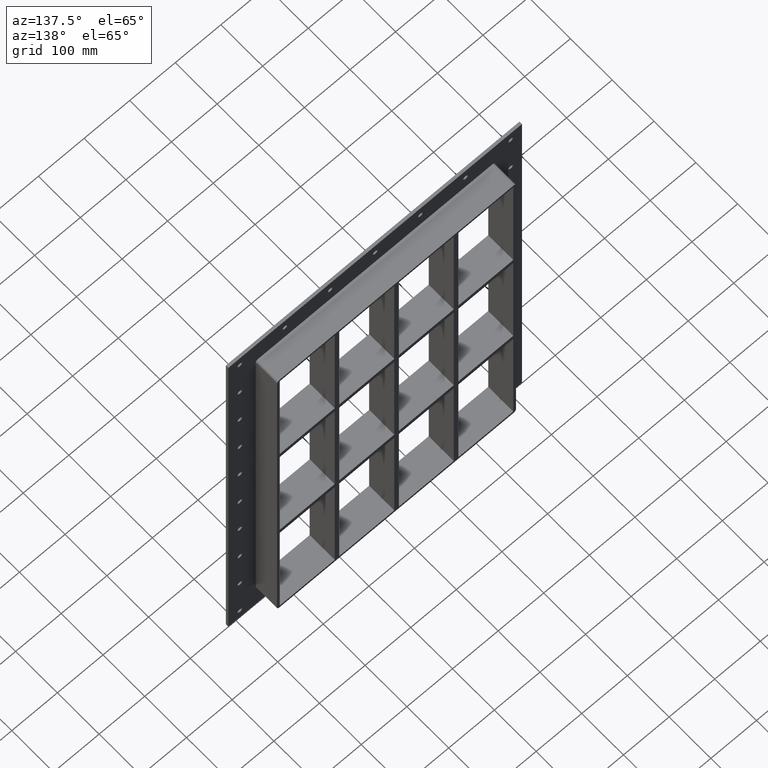
[diagram: clean part render]
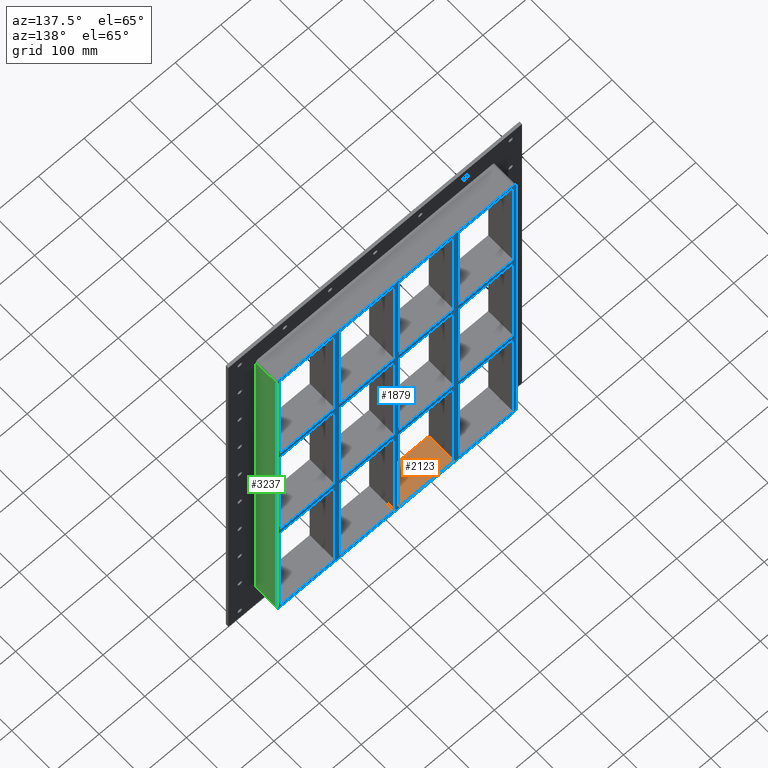
[diagram: same view with three faces highlighted in distinct colors, each labeled with its STEP entity id]
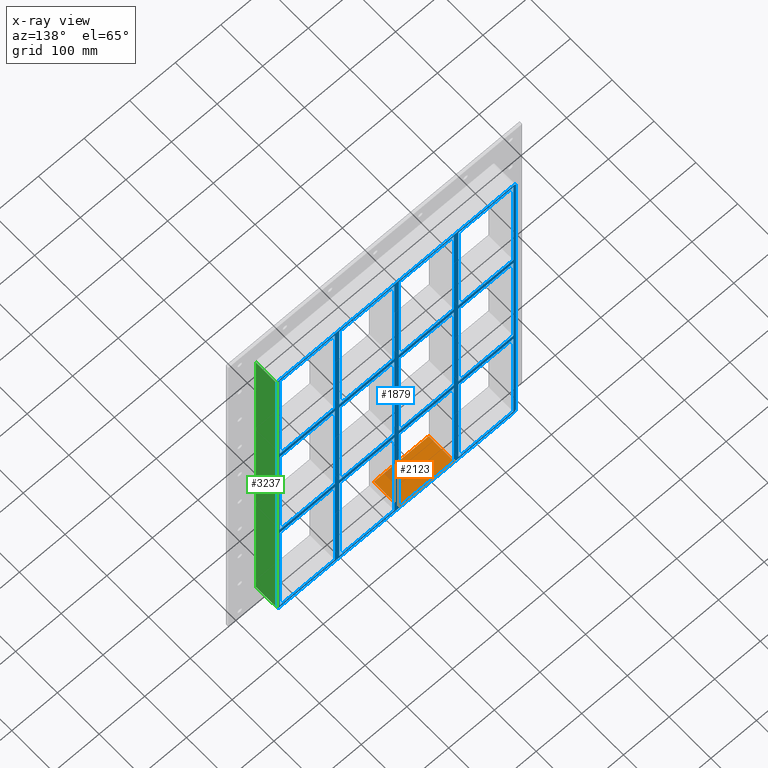
[diagram: x-ray of the same camera — body ghosted, the three highlighted faces saturated]
A machine part, auxiliary view with three faces highlighted in distinct colors.
The next image is the same camera in x-ray (body ghosted, the three faces saturated) — at least one of them is partly hidden behind the body in this view.
Their STEP definitions:

[orange] entity #2123 — the highlighted planar face has unit normal (0, 0, -1).
#1766=CARTESIAN_POINT('',(-5.000000000001279,57.0,-429.00000000000006));
#1767=VERTEX_POINT('',#1766);
#1784=CARTESIAN_POINT('',(-125.49999999999272,57.0,-428.99999999998431));
#1785=VERTEX_POINT('',#1784);
#1792=CARTESIAN_POINT('',(-125.49999999999272,57.0,-429.00000000000006));
#1793=DIRECTION('',(1.0,0.0,0.0));
#1794=VECTOR('',#1793,120.49999999999145);
#1795=LINE('',#1792,#1794);
#1796=EDGE_CURVE('',#1785,#1767,#1795,.T.);
#2028=CARTESIAN_POINT('',(-5.000000000001279,-3.0,-429.00000000000006));
#2029=VERTEX_POINT('',#2028);
#2030=CARTESIAN_POINT('',(-5.000000000001279,-3.0,-429.00000000000006));
#2031=DIRECTION('',(0.0,1.0,0.0));
#2032=VECTOR('',#2031,60.000000000000007);
#2033=LINE('',#2030,#2032);
#2034=EDGE_CURVE('',#2029,#1767,#2033,.T.);
#2100=CARTESIAN_POINT('',(256.00000000000006,0.0,-429.00000000000006));
#2101=DIRECTION('',(0.0,0.0,-1.0));
#2102=DIRECTION('',(-1.0,0.0,0.0));
#2103=AXIS2_PLACEMENT_3D('',#2100,#2101,#2102);
#2104=PLANE('',#2103);
#2105=ORIENTED_EDGE('',*,*,#2034,.T.);
#2106=ORIENTED_EDGE('',*,*,#1796,.F.);
#2107=CARTESIAN_POINT('',(-125.49999999999272,-3.0,-428.99999999998431));
#2108=VERTEX_POINT('',#2107);
#2109=CARTESIAN_POINT('',(-125.49999999999274,57.000000000000007,-429.00000000000006));
#2110=DIRECTION('',(0.0,-1.0,0.0));
#2111=VECTOR('',#2110,60.000000000000007);
#2112=LINE('',#2109,#2111);
#2113=EDGE_CURVE('',#1785,#2108,#2112,.T.);
#2114=ORIENTED_EDGE('',*,*,#2113,.T.);
#2115=CARTESIAN_POINT('',(-5.000000000001279,-3.0,-429.00000000000006));
#2116=DIRECTION('',(-1.0,0.0,0.0));
#2117=VECTOR('',#2116,120.49999999999145);
#2118=LINE('',#2115,#2117);
#2119=EDGE_CURVE('',#2029,#2108,#2118,.T.);
#2120=ORIENTED_EDGE('',*,*,#2119,.F.);
#2121=EDGE_LOOP('',(#2105,#2106,#2114,#2120));
#2122=FACE_OUTER_BOUND('',#2121,.T.);
#2123=ADVANCED_FACE('',(#2122),#2104,.F.);

[blue] entity #1879 — the highlighted planar face has unit normal (0, 1, 0).
#915=CARTESIAN_POINT('',(-135.50000000000142,57.0,138.99999999999068));
#916=VERTEX_POINT('',#915);
#931=CARTESIAN_POINT('',(-255.99999999999972,57.0,138.99999999999068));
#932=VERTEX_POINT('',#931);
#939=CARTESIAN_POINT('',(-135.50000000000136,57.0,138.99999999999068));
#940=DIRECTION('',(-1.0,0.0,0.0));
#941=VECTOR('',#940,120.49999999999841);
#942=LINE('',#939,#941);
#943=EDGE_CURVE('',#916,#932,#942,.T.);
#955=CARTESIAN_POINT('',(-5.000000000001386,57.0,138.99999999999071));
#956=VERTEX_POINT('',#955);
#971=CARTESIAN_POINT('',(-125.49999999999272,57.0,138.99999999999068));
#972=VERTEX_POINT('',#971);
#979=CARTESIAN_POINT('',(-5.000000000001364,57.0,138.99999999999068));
#980=DIRECTION('',(-1.0,0.0,0.0));
#981=VECTOR('',#980,120.49999999999136);
#982=LINE('',#979,#981);
#983=EDGE_CURVE('',#956,#972,#982,.T.);
#993=CARTESIAN_POINT('',(135.50000000000728,57.0,138.99999999999071));
#994=VERTEX_POINT('',#993);
#1003=CARTESIAN_POINT('',(256.00000000000364,57.0,138.99999999999071));
#1004=VERTEX_POINT('',#1003);
#1005=CARTESIAN_POINT('',(256.00000000000364,57.0,138.99999999999071));
#1006=DIRECTION('',(-1.0,0.0,0.0));
#1007=VECTOR('',#1006,120.49999999999636);
#1008=LINE('',#1005,#1007);
#1009=EDGE_CURVE('',#1004,#994,#1008,.T.);
#1035=CARTESIAN_POINT('',(125.49999999999861,57.0,138.99999999999071));
#1036=VERTEX_POINT('',#1035);
#1051=CARTESIAN_POINT('',(5.000000000007283,57.0,138.99999999999071));
#1052=VERTEX_POINT('',#1051);
#1059=CARTESIAN_POINT('',(125.49999999999861,57.0,138.99999999999071));
#1060=DIRECTION('',(-1.0,0.0,0.0));
#1061=VECTOR('',#1060,120.49999999999133);
#1062=LINE('',#1059,#1061);
#1063=EDGE_CURVE('',#1036,#1052,#1062,.T.);
#1073=CARTESIAN_POINT('',(-135.50000000000142,57.0,150.99999999999994));
#1074=VERTEX_POINT('',#1073);
#1083=CARTESIAN_POINT('',(-255.99999999999972,57.0,150.99999999999994));
#1084=VERTEX_POINT('',#1083);
#1085=CARTESIAN_POINT('',(-255.99999999999972,57.0,150.99999999999994));
#1086=DIRECTION('',(1.0,0.0,0.0));
#1087=VECTOR('',#1086,120.49999999999832);
#1088=LINE('',#1085,#1087);
#1089=EDGE_CURVE('',#1084,#1074,#1088,.T.);
#1115=CARTESIAN_POINT('',(135.50000000000728,57.0,150.99999999999994));
#1116=VERTEX_POINT('',#1115);
#1131=CARTESIAN_POINT('',(256.0,57.0,150.99999999999994));
#1132=VERTEX_POINT('',#1131);
#1139=CARTESIAN_POINT('',(135.50000000000733,57.0,150.99999999999994));
#1140=DIRECTION('',(1.0,0.0,0.0));
#1141=VECTOR('',#1140,120.49999999999272);
#1142=LINE('',#1139,#1141);
#1143=EDGE_CURVE('',#1116,#1132,#1142,.T.);
#1153=CARTESIAN_POINT('',(-5.000000000001386,57.0,150.99999999999994));
#1154=VERTEX_POINT('',#1153);
#1163=CARTESIAN_POINT('',(-125.49999999999272,57.0,150.99999999999994));
#1164=VERTEX_POINT('',#1163);
#1165=CARTESIAN_POINT('',(-125.49999999999272,57.0,150.99999999999994));
#1166=DIRECTION('',(1.0,0.0,0.0));
#1167=VECTOR('',#1166,120.49999999999136);
#1168=LINE('',#1165,#1167);
#1169=EDGE_CURVE('',#1164,#1154,#1168,.T.);
#1193=CARTESIAN_POINT('',(125.49999999999862,57.0,150.99999999999994));
#1194=VERTEX_POINT('',#1193);
#1203=CARTESIAN_POINT('',(5.000000000007283,57.0,150.99999999999994));
#1204=VERTEX_POINT('',#1203);
#1205=CARTESIAN_POINT('',(5.000000000007276,57.0,150.99999999999994));
#1206=DIRECTION('',(1.0,0.0,0.0));
#1207=VECTOR('',#1206,120.49999999999136);
#1208=LINE('',#1205,#1207);
#1209=EDGE_CURVE('',#1204,#1194,#1208,.T.);
#1234=CARTESIAN_POINT('',(-256.00000000000006,57.0,429.00000000000006));
#1235=VERTEX_POINT('',#1234);
#1236=CARTESIAN_POINT('',(-256.00000000000006,57.0,429.00000000000006));
#1237=DIRECTION('',(0.0,0.0,-1.0));
#1238=VECTOR('',#1237,278.00000000000011);
#1239=LINE('',#1236,#1238);
#1240=EDGE_CURVE('',#1235,#1084,#1239,.T.);
#1265=CARTESIAN_POINT('',(256.0,57.0,-139.00000000000006));
#1266=VERTEX_POINT('',#1265);
#1267=CARTESIAN_POINT('',(256.00000000000006,57.0,-139.00000000000011));
#1268=DIRECTION('',(0.0,0.0,1.0));
#1269=VECTOR('',#1268,277.99999999999085);
#1270=LINE('',#1267,#1269);
#1271=EDGE_CURVE('',#1266,#1004,#1270,.T.);
#1304=CARTESIAN_POINT('',(256.00000000000006,57.0,429.00000000000006));
#1305=VERTEX_POINT('',#1304);
#1312=CARTESIAN_POINT('',(256.00000000000006,57.0,150.99999999999994));
#1313=DIRECTION('',(0.0,0.0,1.0));
#1314=VECTOR('',#1313,278.00000000000011);
#1315=LINE('',#1312,#1314);
#1316=EDGE_CURVE('',#1132,#1305,#1315,.T.);
#1335=CARTESIAN_POINT('',(125.49999999999855,57.0,429.00000000000006));
#1336=VERTEX_POINT('',#1335);
#1343=CARTESIAN_POINT('',(125.49999999999861,57.0,150.99999999999994));
#1344=DIRECTION('',(0.0,0.0,1.0));
#1345=VECTOR('',#1344,278.00000000000011);
#1346=LINE('',#1343,#1345);
#1347=EDGE_CURVE('',#1194,#1336,#1346,.T.);
#1358=CARTESIAN_POINT('',(135.50000000000728,57.0,429.00000000000006));
#1359=VERTEX_POINT('',#1358);
#1360=CARTESIAN_POINT('',(135.50000000000728,57.0,429.00000000000006));
#1361=DIRECTION('',(0.0,0.0,-1.0));
#1362=VECTOR('',#1361,278.00000000000011);
#1363=LINE('',#1360,#1362);
#1364=EDGE_CURVE('',#1359,#1116,#1363,.T.);
#1397=CARTESIAN_POINT('',(-5.000000000001457,57.0,429.00000000000006));
#1398=VERTEX_POINT('',#1397);
#1405=CARTESIAN_POINT('',(-5.000000000001399,57.0,150.99999999999994));
#1406=DIRECTION('',(0.0,0.0,1.0));
#1407=VECTOR('',#1406,278.00000000000011);
#1408=LINE('',#1405,#1407);
#1409=EDGE_CURVE('',#1154,#1398,#1408,.T.);
#1420=CARTESIAN_POINT('',(5.000000000007283,57.0,429.00000000000006));
#1421=VERTEX_POINT('',#1420);
#1422=CARTESIAN_POINT('',(5.000000000007283,57.0,429.00000000000006));
#1423=DIRECTION('',(0.0,0.0,-1.0));
#1424=VECTOR('',#1423,278.00000000000011);
#1425=LINE('',#1422,#1424);
#1426=EDGE_CURVE('',#1421,#1204,#1425,.T.);
#1459=CARTESIAN_POINT('',(-135.50000000000148,57.0,429.00000000000006));
#1460=VERTEX_POINT('',#1459);
#1467=CARTESIAN_POINT('',(-135.50000000000139,57.0,150.99999999999994));
#1468=DIRECTION('',(0.0,0.0,1.0));
#1469=VECTOR('',#1468,278.00000000000011);
#1470=LINE('',#1467,#1469);
#1471=EDGE_CURVE('',#1074,#1460,#1470,.T.);
#1482=CARTESIAN_POINT('',(-135.50000000000134,57.0,-139.00000000000006));
#1483=VERTEX_POINT('',#1482);
#1484=CARTESIAN_POINT('',(-135.50000000000134,57.0,-139.00000000000006));
#1485=DIRECTION('',(0.0,0.0,1.0));
#1486=VECTOR('',#1485,277.99999999999068);
#1487=LINE('',#1484,#1486);
#1488=EDGE_CURVE('',#1483,#916,#1487,.T.);
#1513=CARTESIAN_POINT('',(-125.49999999999272,57.0,429.00000000000006));
#1514=VERTEX_POINT('',#1513);
#1515=CARTESIAN_POINT('',(-125.49999999999272,57.0,429.00000000000006));
#1516=DIRECTION('',(0.0,0.0,-1.0));
#1517=VECTOR('',#1516,278.00000000000011);
#1518=LINE('',#1515,#1517);
#1519=EDGE_CURVE('',#1514,#1164,#1518,.T.);
#1538=CARTESIAN_POINT('',(-2.446632E-014,57.0,-7.339896E-014));
#1539=DIRECTION('',(0.0,1.0,0.0));
#1540=DIRECTION('',(0.0,0.0,1.0));
#1541=AXIS2_PLACEMENT_3D('',#1538,#1539,#1540);
#1542=PLANE('',#1541);
#1543=CARTESIAN_POINT('',(256.0,57.0,-435.00000000000011));
#1544=VERTEX_POINT('',#1543);
#1545=CARTESIAN_POINT('',(262.0,57.0,-429.00000000000006));
#1546=VERTEX_POINT('',#1545);
#1547=CARTESIAN_POINT('',(256.0,57.0,-429.00000000000006));
#1548=DIRECTION('',(0.0,-1.0,0.0));
#1549=DIRECTION('',(0.707106781186543,0.0,-0.707106781186552));
#1550=AXIS2_PLACEMENT_3D('',#1547,#1548,#1549);
#1551=CIRCLE('',#1550,6.0);
#1552=EDGE_CURVE('',#1544,#1546,#1551,.T.);
#1553=ORIENTED_EDGE('',*,*,#1552,.F.);
#1554=CARTESIAN_POINT('',(-256.00000000000006,57.0,-435.00000000000011));
#1555=VERTEX_POINT('',#1554);
#1556=CARTESIAN_POINT('',(256.0,57.0,-435.00000000000011));
#1557=DIRECTION('',(-1.0,0.0,0.0));
#1558=VECTOR('',#1557,512.0);
#1559=LINE('',#1556,#1558);
#1560=EDGE_CURVE('',#1544,#1555,#1559,.T.);
#1561=ORIENTED_EDGE('',*,*,#1560,.T.);
#1562=CARTESIAN_POINT('',(-262.00000000000006,57.0,-429.00000000000023));
#1563=VERTEX_POINT('',#1562);
#1564=CARTESIAN_POINT('',(-256.00000000000006,57.0,-429.00000000000023));
#1565=DIRECTION('',(0.0,-1.0,0.0));
#1566=DIRECTION('',(-0.707106781186552,0.0,-0.707106781186543));
#1567=AXIS2_PLACEMENT_3D('',#1564,#1565,#1566);
#1568=CIRCLE('',#1567,6.000000000000001);
#1569=EDGE_CURVE('',#1563,#1555,#1568,.T.);
#1570=ORIENTED_EDGE('',*,*,#1569,.F.);
#1571=CARTESIAN_POINT('',(-262.00000000000006,57.0,428.99999999999989));
#1572=VERTEX_POINT('',#1571);
#1573=CARTESIAN_POINT('',(-262.00000000000006,57.0,-429.00000000000017));
#1574=DIRECTION('',(0.0,0.0,1.0));
#1575=VECTOR('',#1574,858.0);
#1576=LINE('',#1573,#1575);
#1577=EDGE_CURVE('',#1563,#1572,#1576,.T.);
#1578=ORIENTED_EDGE('',*,*,#1577,.T.);
#1579=CARTESIAN_POINT('',(-256.00000000000011,57.0,435.0));
#1580=VERTEX_POINT('',#1579);
#1581=CARTESIAN_POINT('',(-256.00000000000011,57.0,428.99999999999989));
#1582=DIRECTION('',(0.0,-1.0,0.0));
#1583=DIRECTION('',(-0.707106781186539,0.0,0.707106781186556));
#1584=AXIS2_PLACEMENT_3D('',#1581,#1582,#1583);
#1585=CIRCLE('',#1584,6.000000000000001);
#1586=EDGE_CURVE('',#1580,#1572,#1585,.T.);
#1587=ORIENTED_EDGE('',*,*,#1586,.F.);
#1588=CARTESIAN_POINT('',(256.0,57.0,435.0));
#1589=VERTEX_POINT('',#1588);
#1590=CARTESIAN_POINT('',(-256.00000000000006,57.0,435.0));
#1591=DIRECTION('',(1.0,0.0,0.0));
#1592=VECTOR('',#1591,512.0);
#1593=LINE('',#1590,#1592);
#1594=EDGE_CURVE('',#1580,#1589,#1593,.T.);
#1595=ORIENTED_EDGE('',*,*,#1594,.T.);
#1596=CARTESIAN_POINT('',(262.0,57.0,429.0));
#1597=VERTEX_POINT('',#1596);
#1598=CARTESIAN_POINT('',(256.0,57.0,429.0));
#1599=DIRECTION('',(0.0,-1.0,0.0));
#1600=DIRECTION('',(0.707106781186543,0.0,0.707106781186552));
#1601=AXIS2_PLACEMENT_3D('',#1598,#1599,#1600);
#1602=CIRCLE('',#1601,6.0);
#1603=EDGE_CURVE('',#1597,#1589,#1602,.T.);
#1604=ORIENTED_EDGE('',*,*,#1603,.F.);
#1605=CARTESIAN_POINT('',(262.0,57.0,429.0));
#1606=DIRECTION('',(0.0,0.0,-1.0));
#1607=VECTOR('',#1606,858.0);
#1608=LINE('',#1605,#1607);
#1609=EDGE_CURVE('',#1597,#1546,#1608,.T.);
#1610=ORIENTED_EDGE('',*,*,#1609,.T.);
#1611=EDGE_LOOP('',(#1553,#1561,#1570,#1578,#1587,#1595,#1604,#1610));
#1612=FACE_OUTER_BOUND('',#1611,.T.);
#1613=CARTESIAN_POINT('',(-255.99999999999972,57.0,-139.00000000000006));
#1614=VERTEX_POINT('',#1613);
#1615=CARTESIAN_POINT('',(-256.00000000000006,57.0,138.99999999999062));
#1616=DIRECTION('',(0.0,0.0,-1.0));
#1617=VECTOR('',#1616,277.99999999999068);
#1618=LINE('',#1615,#1617);
#1619=EDGE_CURVE('',#932,#1614,#1618,.T.);
#1620=ORIENTED_EDGE('',*,*,#1619,.T.);
#1621=CARTESIAN_POINT('',(-255.99999999999972,57.0,-139.00000000000006));
#1622=DIRECTION('',(1.0,0.0,0.0));
#1623=VECTOR('',#1622,120.49999999999841);
#1624=LINE('',#1621,#1623);
#1625=EDGE_CURVE('',#1614,#1483,#1624,.T.);
#1626=ORIENTED_EDGE('',*,*,#1625,.T.);
#1627=ORIENTED_EDGE('',*,*,#1488,.T.);
#1628=ORIENTED_EDGE('',*,*,#943,.T.);
#1629=EDGE_LOOP('',(#1620,#1626,#1627,#1628));
#1630=FACE_BOUND('',#1629,.T.);
#1631=ORIENTED_EDGE('',*,*,#1316,.T.);
#1632=CARTESIAN_POINT('',(256.0,57.0,429.00000000000006));
#1633=DIRECTION('',(-1.0,0.0,0.0));
#1634=VECTOR('',#1633,120.49999999999272);
#1635=LINE('',#1632,#1634);
#1636=EDGE_CURVE('',#1305,#1359,#1635,.T.);
#1637=ORIENTED_EDGE('',*,*,#1636,.T.);
#1638=ORIENTED_EDGE('',*,*,#1364,.T.);
#1639=ORIENTED_EDGE('',*,*,#1143,.T.);
#1640=EDGE_LOOP('',(#1631,#1637,#1638,#1639));
#1641=FACE_BOUND('',#1640,.T.);
#1642=ORIENTED_EDGE('',*,*,#1347,.T.);
#1643=CARTESIAN_POINT('',(125.49999999999852,57.0,429.00000000000006));
#1644=DIRECTION('',(-1.0,0.0,0.0));
#1645=VECTOR('',#1644,120.49999999999125);
#1646=LINE('',#1643,#1645);
#1647=EDGE_CURVE('',#1336,#1421,#1646,.T.);
#1648=ORIENTED_EDGE('',*,*,#1647,.T.);
#1649=ORIENTED_EDGE('',*,*,#1426,.T.);
#1650=ORIENTED_EDGE('',*,*,#1209,.T.);
#1651=EDGE_LOOP('',(#1642,#1648,#1649,#1650));
#1652=FACE_BOUND('',#1651,.T.);
#1653=ORIENTED_EDGE('',*,*,#1409,.T.);
#1654=CARTESIAN_POINT('',(-5.000000000001478,57.0,429.00000000000006));
#1655=DIRECTION('',(-1.0,0.0,0.0));
#1656=VECTOR('',#1655,120.49999999999126);
#1657=LINE('',#1654,#1656);
#1658=EDGE_CURVE('',#1398,#1514,#1657,.T.);
#1659=ORIENTED_EDGE('',*,*,#1658,.T.);
#1660=ORIENTED_EDGE('',*,*,#1519,.T.);
#1661=ORIENTED_EDGE('',*,*,#1169,.T.);
#1662=EDGE_LOOP('',(#1653,#1659,#1660,#1661));
#1663=FACE_BOUND('',#1662,.T.);
#1664=ORIENTED_EDGE('',*,*,#1009,.T.);
#1665=CARTESIAN_POINT('',(135.50000000000728,57.0,-139.00000000000006));
#1666=VERTEX_POINT('',#1665);
#1667=CARTESIAN_POINT('',(135.50000000000728,57.0,138.99999999999073));
#1668=DIRECTION('',(0.0,0.0,-1.0));
#1669=VECTOR('',#1668,277.99999999999079);
#1670=LINE('',#1667,#1669);
#1671=EDGE_CURVE('',#994,#1666,#1670,.T.);
#1672=ORIENTED_EDGE('',*,*,#1671,.T.);
#1673=CARTESIAN_POINT('',(135.50000000000733,57.0,-139.00000000000006));
#1674=DIRECTION('',(1.0,0.0,0.0));
#1675=VECTOR('',#1674,120.49999999999272);
#1676=LINE('',#1673,#1675);
#1677=EDGE_CURVE('',#1666,#1266,#1676,.T.);
#1678=ORIENTED_EDGE('',*,*,#1677,.T.);
#1679=ORIENTED_EDGE('',*,*,#1271,.T.);
#1680=EDGE_LOOP('',(#1664,#1672,#1678,#1679));
#1681=FACE_BOUND('',#1680,.T.);
#1682=ORIENTED_EDGE('',*,*,#1063,.T.);
#1683=CARTESIAN_POINT('',(5.000000000007283,57.0,-139.00000000000006));
#1684=VERTEX_POINT('',#1683);
#1685=CARTESIAN_POINT('',(5.000000000007283,57.0,138.99999999999068));
#1686=DIRECTION('',(0.0,0.0,-1.0));
#1687=VECTOR('',#1686,277.99999999999073);
#1688=LINE('',#1685,#1687);
#1689=EDGE_CURVE('',#1052,#1684,#1688,.T.);
#1690=ORIENTED_EDGE('',*,*,#1689,.T.);
#1691=CARTESIAN_POINT('',(125.49999999999868,57.0,-139.00000000000006));
#1692=VERTEX_POINT('',#1691);
#1693=CARTESIAN_POINT('',(5.000000000007276,57.0,-139.00000000000006));
#1694=DIRECTION('',(1.0,0.0,0.0));
#1695=VECTOR('',#1694,120.49999999999142);
#1696=LINE('',#1693,#1695);
#1697=EDGE_CURVE('',#1684,#1692,#1696,.T.);
#1698=ORIENTED_EDGE('',*,*,#1697,.T.);
#1699=CARTESIAN_POINT('',(125.49999999999866,57.0,-139.00000000000006));
#1700=DIRECTION('',(0.0,0.0,1.0));
#1701=VECTOR('',#1700,277.99999999999068);
#1702=LINE('',#1699,#1701);
#1703=EDGE_CURVE('',#1692,#1036,#1702,.T.);
#1704=ORIENTED_EDGE('',*,*,#1703,.T.);
#1705=EDGE_LOOP('',(#1682,#1690,#1698,#1704));
#1706=FACE_BOUND('',#1705,.T.);
#1707=ORIENTED_EDGE('',*,*,#983,.T.);
#1708=CARTESIAN_POINT('',(-125.49999999999272,57.0,-139.00000000000006));
#1709=VERTEX_POINT('',#1708);
#1710=CARTESIAN_POINT('',(-125.49999999999272,57.0,138.99999999999068));
#1711=DIRECTION('',(0.0,0.0,-1.0));
#1712=VECTOR('',#1711,277.99999999999073);
#1713=LINE('',#1710,#1712);
#1714=EDGE_CURVE('',#972,#1709,#1713,.T.);
#1715=ORIENTED_EDGE('',*,*,#1714,.T.);
#1716=CARTESIAN_POINT('',(-5.000000000001339,57.0,-139.00000000000006));
#1717=VERTEX_POINT('',#1716);
#1718=CARTESIAN_POINT('',(-125.49999999999272,57.0,-139.00000000000006));
#1719=DIRECTION('',(1.0,0.0,0.0));
#1720=VECTOR('',#1719,120.49999999999139);
#1721=LINE('',#1718,#1720);
#1722=EDGE_CURVE('',#1709,#1717,#1721,.T.);
#1723=ORIENTED_EDGE('',*,*,#1722,.T.);
#1724=CARTESIAN_POINT('',(-5.000000000001339,57.0,-139.00000000000006));
#1725=DIRECTION('',(0.0,0.0,1.0));
#1726=VECTOR('',#1725,277.99999999999068);
#1727=LINE('',#1724,#1726);
#1728=EDGE_CURVE('',#1717,#956,#1727,.T.);
#1729=ORIENTED_EDGE('',*,*,#1728,.T.);
#1730=EDGE_LOOP('',(#1707,#1715,#1723,#1729));
#1731=FACE_BOUND('',#1730,.T.);
#1732=CARTESIAN_POINT('',(-255.99999999999972,57.0,-151.00000000000932));
#1733=VERTEX_POINT('',#1732);
#1734=CARTESIAN_POINT('',(-256.00000000000006,57.0,-429.00000000000006));
#1735=VERTEX_POINT('',#1734);
#1736=CARTESIAN_POINT('',(-256.00000000000006,57.0,-151.00000000000932));
#1737=DIRECTION('',(0.0,0.0,-1.0));
#1738=VECTOR('',#1737,277.99999999999073);
#1739=LINE('',#1736,#1738);
#1740=EDGE_CURVE('',#1733,#1735,#1739,.T.);
#1741=ORIENTED_EDGE('',*,*,#1740,.T.);
#1742=CARTESIAN_POINT('',(-135.50000000000128,57.0,-429.00000000000006));
#1743=VERTEX_POINT('',#1742);
#1744=CARTESIAN_POINT('',(-256.00000000000006,57.0,-429.00000000000006));
#1745=DIRECTION('',(1.0,0.0,0.0));
#1746=VECTOR('',#1745,120.49999999999875);
#1747=LINE('',#1744,#1746);
#1748=EDGE_CURVE('',#1735,#1743,#1747,.T.);
#1749=ORIENTED_EDGE('',*,*,#1748,.T.);
#1750=CARTESIAN_POINT('',(-135.50000000000131,57.0,-151.00000000000932));
#1751=VERTEX_POINT('',#1750);
#1752=CARTESIAN_POINT('',(-135.50000000000128,57.0,-429.00000000000006));
#1753=DIRECTION('',(0.0,0.0,1.0));
#1754=VECTOR('',#1753,277.99999999999073);
#1755=LINE('',#1752,#1754);
#1756=EDGE_CURVE('',#1743,#1751,#1755,.T.);
#1757=ORIENTED_EDGE('',*,*,#1756,.T.);
#1758=CARTESIAN_POINT('',(-135.50000000000131,57.0,-151.00000000000932));
#1759=DIRECTION('',(-1.0,0.0,0.0));
#1760=VECTOR('',#1759,120.49999999999847);
#1761=LINE('',#1758,#1760);
#1762=EDGE_CURVE('',#1751,#1733,#1761,.T.);
#1763=ORIENTED_EDGE('',*,*,#1762,.T.);
#1764=EDGE_LOOP('',(#1741,#1749,#1757,#1763));
#1765=FACE_BOUND('',#1764,.T.);
#1766=CARTESIAN_POINT('',(-5.000000000001279,57.0,-429.00000000000006));
#1767=VERTEX_POINT('',#1766);
#1768=CARTESIAN_POINT('',(-5.000000000001337,57.0,-151.00000000000932));
#1769=VERTEX_POINT('',#1768);
#1770=CARTESIAN_POINT('',(-5.000000000001279,57.0,-429.00000000000006));
#1771=DIRECTION('',(0.0,0.0,1.0));
#1772=VECTOR('',#1771,277.99999999999073);
#1773=LINE('',#1770,#1772);
#1774=EDGE_CURVE('',#1767,#1769,#1773,.T.);
#1775=ORIENTED_EDGE('',*,*,#1774,.T.);
#1776=CARTESIAN_POINT('',(-125.49999999999272,57.0,-151.00000000000929));
#1777=VERTEX_POINT('',#1776);
#1778=CARTESIAN_POINT('',(-5.000000000001364,57.0,-151.00000000000932));
#1779=DIRECTION('',(-1.0,0.0,0.0));
#1780=VECTOR('',#1779,120.49999999999136);
#1781=LINE('',#1778,#1780);
#1782=EDGE_CURVE('',#1769,#1777,#1781,.T.);
#1783=ORIENTED_EDGE('',*,*,#1782,.T.);
#1784=CARTESIAN_POINT('',(-125.49999999999272,57.0,-428.99999999998431));
#1785=VERTEX_POINT('',#1784);
#1786=CARTESIAN_POINT('',(-125.49999999999272,57.0,-151.00000000000927));
#1787=DIRECTION('',(0.0,0.0,-1.0));
#1788=VECTOR('',#1787,277.99999999997499);
#1789=LINE('',#1786,#1788);
#1790=EDGE_CURVE('',#1777,#1785,#1789,.T.);
#1791=ORIENTED_EDGE('',*,*,#1790,.T.);
#1792=CARTESIAN_POINT('',(-125.49999999999272,57.0,-429.00000000000006));
#1793=DIRECTION('',(1.0,0.0,0.0));
#1794=VECTOR('',#1793,120.49999999999145);
#1795=LINE('',#1792,#1794);
#1796=EDGE_CURVE('',#1785,#1767,#1795,.T.);
#1797=ORIENTED_EDGE('',*,*,#1796,.T.);
#1798=EDGE_LOOP('',(#1775,#1783,#1791,#1797));
#1799=FACE_BOUND('',#1798,.T.);
#1800=CARTESIAN_POINT('',(125.49999999999872,57.0,-429.00000000000006));
#1801=VERTEX_POINT('',#1800);
#1802=CARTESIAN_POINT('',(125.49999999999868,57.0,-151.00000000000929));
#1803=VERTEX_POINT('',#1802);
#1804=CARTESIAN_POINT('',(125.49999999999872,57.0,-429.00000000000006));
#1805=DIRECTION('',(0.0,0.0,1.0));
#1806=VECTOR('',#1805,277.99999999999079);
#1807=LINE('',#1804,#1806);
#1808=EDGE_CURVE('',#1801,#1803,#1807,.T.);
#1809=ORIENTED_EDGE('',*,*,#1808,.T.);
#1810=CARTESIAN_POINT('',(5.000000000007283,57.0,-151.00000000000932));
#1811=VERTEX_POINT('',#1810);
#1812=CARTESIAN_POINT('',(125.49999999999866,57.0,-151.00000000000929));
#1813=DIRECTION('',(-1.0,0.0,0.0));
#1814=VECTOR('',#1813,120.49999999999139);
#1815=LINE('',#1812,#1814);
#1816=EDGE_CURVE('',#1803,#1811,#1815,.T.);
#1817=ORIENTED_EDGE('',*,*,#1816,.T.);
#1818=CARTESIAN_POINT('',(5.000000000007283,57.0,-428.99999999998431));
#1819=VERTEX_POINT('',#1818);
#1820=CARTESIAN_POINT('',(5.000000000007283,57.0,-151.00000000000927));
#1821=DIRECTION('',(0.0,0.0,-1.0));
#1822=VECTOR('',#1821,277.99999999997499);
#1823=LINE('',#1820,#1822);
#1824=EDGE_CURVE('',#1811,#1819,#1823,.T.);
#1825=ORIENTED_EDGE('',*,*,#1824,.T.);
#1826=CARTESIAN_POINT('',(5.000000000007276,57.0,-429.00000000000006));
#1827=DIRECTION('',(1.0,0.0,0.0));
#1828=VECTOR('',#1827,120.49999999999145);
#1829=LINE('',#1826,#1828);
#1830=EDGE_CURVE('',#1819,#1801,#1829,.T.);
#1831=ORIENTED_EDGE('',*,*,#1830,.T.);
#1832=EDGE_LOOP('',(#1809,#1817,#1825,#1831));
#1833=FACE_BOUND('',#1832,.T.);
#1834=ORIENTED_EDGE('',*,*,#1089,.T.);
#1835=ORIENTED_EDGE('',*,*,#1471,.T.);
#1836=CARTESIAN_POINT('',(-135.50000000000148,57.0,429.00000000000006));
#1837=DIRECTION('',(-1.0,0.0,0.0));
#1838=VECTOR('',#1837,120.49999999999858);
#1839=LINE('',#1836,#1838);
#1840=EDGE_CURVE('',#1460,#1235,#1839,.T.);
#1841=ORIENTED_EDGE('',*,*,#1840,.T.);
#1842=ORIENTED_EDGE('',*,*,#1240,.T.);
#1843=EDGE_LOOP('',(#1834,#1835,#1841,#1842));
#1844=FACE_BOUND('',#1843,.T.);
#1845=CARTESIAN_POINT('',(135.50000000000728,57.0,-428.99999999998431));
#1846=VERTEX_POINT('',#1845);
#1847=CARTESIAN_POINT('',(256.00000000000006,57.0,-429.00000000000006));
#1848=VERTEX_POINT('',#1847);
#1849=CARTESIAN_POINT('',(135.50000000000728,57.0,-429.00000000000006));
#1850=DIRECTION('',(1.0,0.0,0.0));
#1851=VECTOR('',#1850,120.49999999999278);
#1852=LINE('',#1849,#1851);
#1853=EDGE_CURVE('',#1846,#1848,#1852,.T.);
#1854=ORIENTED_EDGE('',*,*,#1853,.T.);
#1855=CARTESIAN_POINT('',(256.00000000000364,57.0,-151.00000000000929));
#1856=VERTEX_POINT('',#1855);
#1857=CARTESIAN_POINT('',(256.00000000000006,57.0,-429.00000000000011));
#1858=DIRECTION('',(0.0,0.0,1.0));
#1859=VECTOR('',#1858,277.99999999999085);
#1860=LINE('',#1857,#1859);
#1861=EDGE_CURVE('',#1848,#1856,#1860,.T.);
#1862=ORIENTED_EDGE('',*,*,#1861,.T.);
#1863=CARTESIAN_POINT('',(135.50000000000728,57.0,-151.00000000000932));
#1864=VERTEX_POINT('',#1863);
#1865=CARTESIAN_POINT('',(256.00000000000364,57.0,-151.00000000000929));
#1866=DIRECTION('',(-1.0,0.0,0.0));
#1867=VECTOR('',#1866,120.49999999999636);
#1868=LINE('',#1865,#1867);
#1869=EDGE_CURVE('',#1856,#1864,#1868,.T.);
#1870=ORIENTED_EDGE('',*,*,#1869,.T.);
#1871=CARTESIAN_POINT('',(135.50000000000728,57.0,-151.00000000000927));
#1872=DIRECTION('',(0.0,0.0,-1.0));
#1873=VECTOR('',#1872,277.99999999997499);
#1874=LINE('',#1871,#1873);
#1875=EDGE_CURVE('',#1864,#1846,#1874,.T.);
#1876=ORIENTED_EDGE('',*,*,#1875,.T.);
#1877=EDGE_LOOP('',(#1854,#1862,#1870,#1876));
#1878=FACE_BOUND('',#1877,.T.);
#1879=ADVANCED_FACE('',(#1612,#1630,#1641,#1652,#1663,#1681,#1706,#1731,#1765,#1799,#1833,#1844,#1878),#1542,.T.);

[green] entity #3237 — the highlighted planar face has unit normal (1, 0, 0).
#1545=CARTESIAN_POINT('',(262.0,57.0,-429.00000000000006));
#1546=VERTEX_POINT('',#1545);
#1596=CARTESIAN_POINT('',(262.0,57.0,429.0));
#1597=VERTEX_POINT('',#1596);
#1605=CARTESIAN_POINT('',(262.0,57.0,429.0));
#1606=DIRECTION('',(0.0,0.0,-1.0));
#1607=VECTOR('',#1606,858.0);
#1608=LINE('',#1605,#1607);
#1609=EDGE_CURVE('',#1597,#1546,#1608,.T.);
#2828=CARTESIAN_POINT('',(262.0,6.000000000000001,-429.00000000000006));
#2829=VERTEX_POINT('',#2828);
#2837=CARTESIAN_POINT('',(262.0,6.000000000000001,429.0));
#2838=VERTEX_POINT('',#2837);
#2839=CARTESIAN_POINT('',(262.0,6.000000000000001,429.0));
#2840=DIRECTION('',(0.0,0.0,-1.0));
#2841=VECTOR('',#2840,858.0);
#2842=LINE('',#2839,#2841);
#2843=EDGE_CURVE('',#2838,#2829,#2842,.T.);
#3188=CARTESIAN_POINT('',(262.0,6.000000000000001,429.0));
#3189=DIRECTION('',(0.0,1.0,0.0));
#3190=VECTOR('',#3189,51.0);
#3191=LINE('',#3188,#3190);
#3192=EDGE_CURVE('',#2838,#1597,#3191,.T.);
#3221=CARTESIAN_POINT('',(262.0,0.0,435.0));
#3222=DIRECTION('',(1.0,0.0,0.0));
#3223=DIRECTION('',(0.0,0.0,-1.0));
#3224=AXIS2_PLACEMENT_3D('',#3221,#3222,#3223);
#3225=PLANE('',#3224);
#3226=ORIENTED_EDGE('',*,*,#2843,.T.);
#3227=CARTESIAN_POINT('',(262.0,57.0,-429.00000000000006));
#3228=DIRECTION('',(0.0,-1.0,0.0));
#3229=VECTOR('',#3228,51.0);
#3230=LINE('',#3227,#3229);
#3231=EDGE_CURVE('',#1546,#2829,#3230,.T.);
#3232=ORIENTED_EDGE('',*,*,#3231,.F.);
#3233=ORIENTED_EDGE('',*,*,#1609,.F.);
#3234=ORIENTED_EDGE('',*,*,#3192,.F.);
#3235=EDGE_LOOP('',(#3226,#3232,#3233,#3234));
#3236=FACE_OUTER_BOUND('',#3235,.T.);
#3237=ADVANCED_FACE('',(#3236),#3225,.T.);